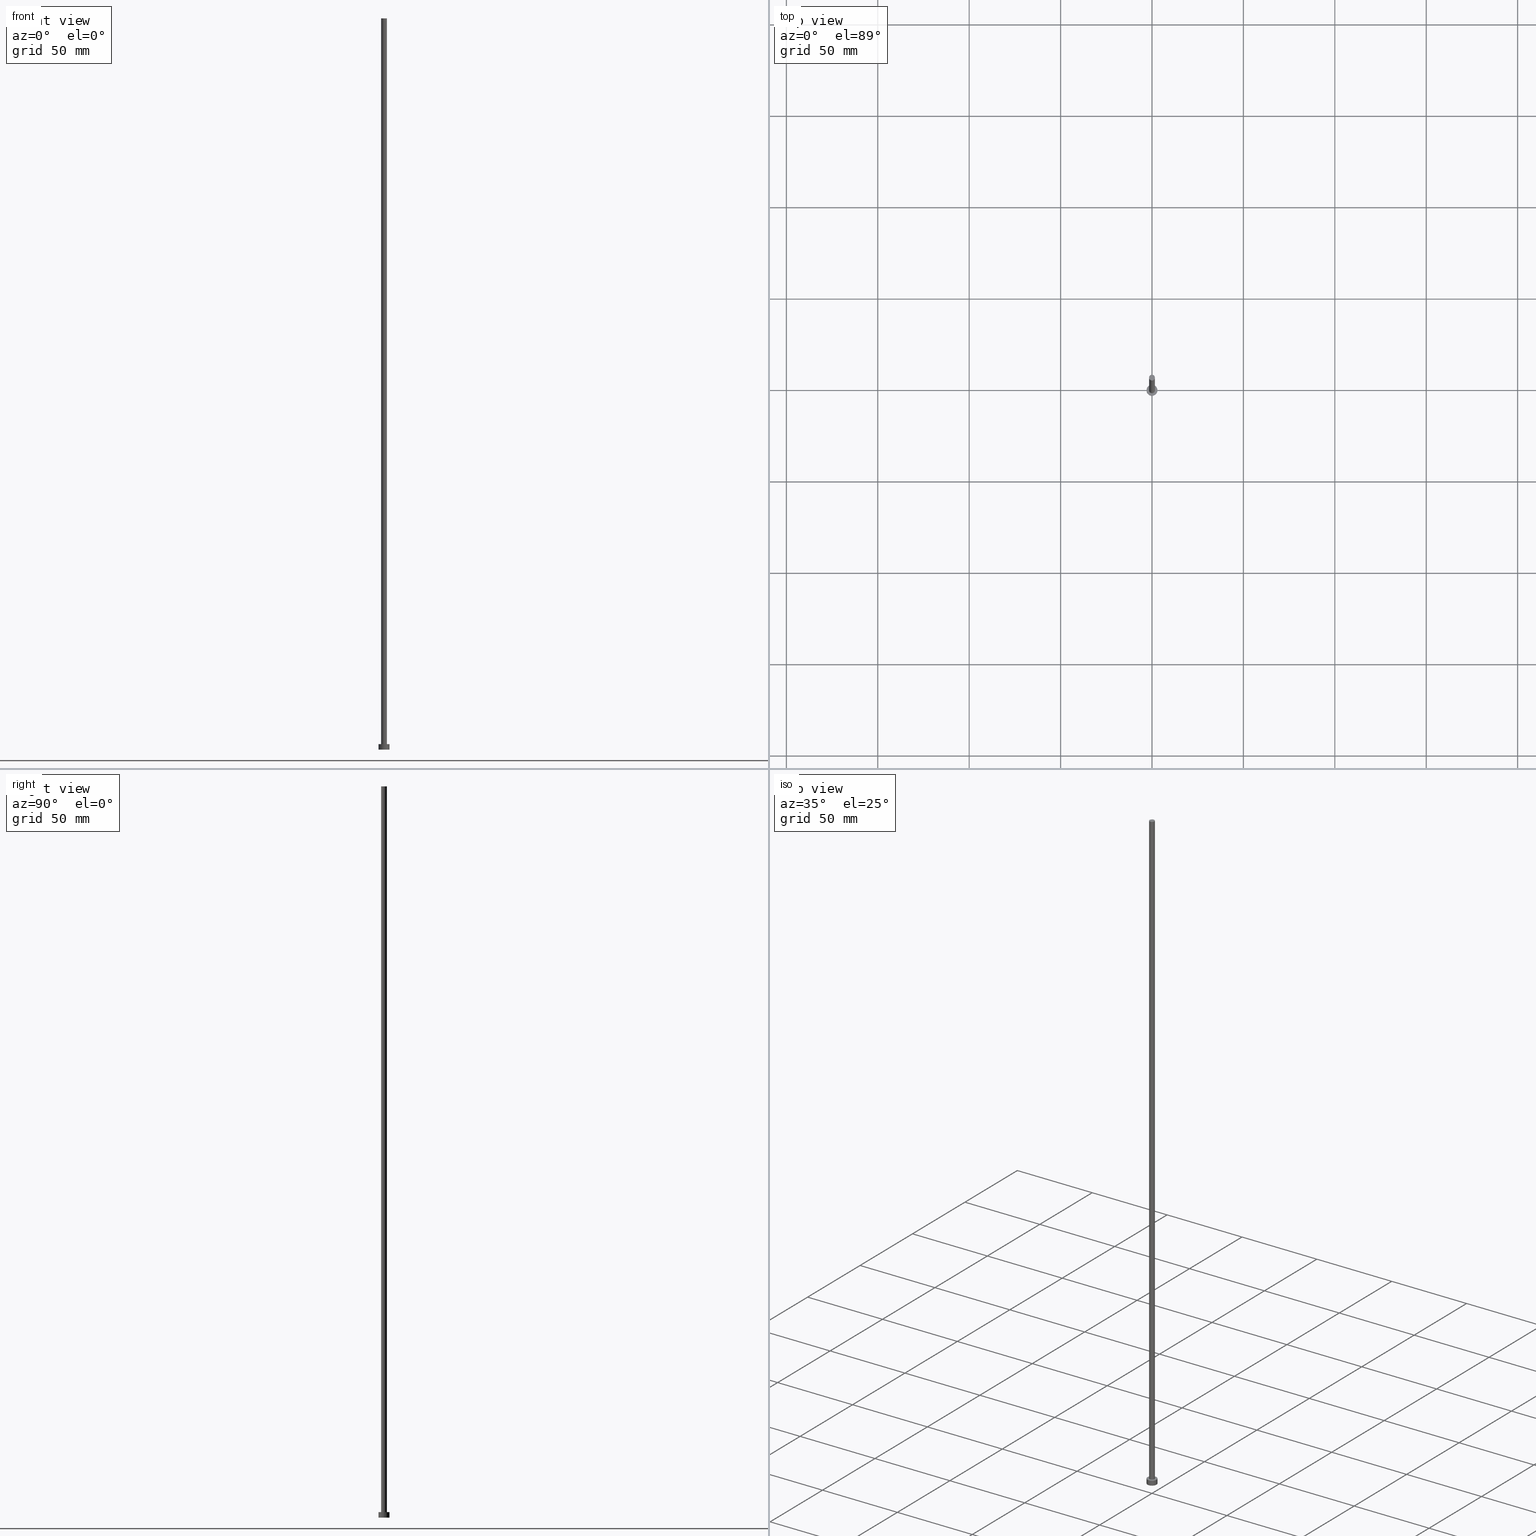
[diagram: canonical four-view strip — front | top / right | iso, engineering-drawing reading convention]
A machine part, canonical four-view strip (front | top / right | iso — engineering-drawing reading convention). The complete STEP part file that produces these views, byte-faithful:
ISO-10303-21;
HEADER;
FILE_DESCRIPTION (( 'STEP AP203' ),
    '1' );
FILE_NAME ('bd90.STEP',
    '2023-02-13T15:35:23',
    ( '' ),
    ( '' ),
    'SwSTEP 2.0',
    'SolidWorks 2019',
    '' );
FILE_SCHEMA (( 'CONFIG_CONTROL_DESIGN' ));
ENDSEC;

DATA;
#1 =( NAMED_UNIT ( * ) SI_UNIT ( $, .STERADIAN. ) SOLID_ANGLE_UNIT ( ) );
#2 = CC_DESIGN_APPROVAL ( #15, ( #203 ) ) ;
#3 = VERTEX_POINT ( 'NONE', #246 ) ;
#4 = ORIENTED_EDGE ( 'NONE', *, *, #155, .F. ) ;
#5 = PRODUCT_DEFINITION_SHAPE ( 'NONE', 'NONE',  #177 ) ;
#6 = ORIENTED_EDGE ( 'NONE', *, *, #200, .F. ) ;
#7 = APPLICATION_PROTOCOL_DEFINITION ( 'international standard', 'config_control_design', 1994, #123 ) ;
#8 = APPROVAL_PERSON_ORGANIZATION ( #23, #252, #126 ) ;
#9 = ORIENTED_EDGE ( 'NONE', *, *, #112, .T. ) ;
#10 = PLANE ( 'NONE',  #59 ) ;
#11 = ORIENTED_EDGE ( 'NONE', *, *, #172, .F. ) ;
#12 = CARTESIAN_POINT ( 'NONE',  ( -1.600000000000000089, 0.000000000000000000, 400.0000000000000000 ) ) ;
#13 = CARTESIAN_POINT ( 'NONE',  ( -3.000000000000000444, 0.000000000000000000, 0.000000000000000000 ) ) ;
#14 = COORDINATED_UNIVERSAL_TIME_OFFSET ( 1, 0, .AHEAD. ) ;
#15 = APPROVAL ( #94, 'NEUR�EN�' ) ;
#16 = CARTESIAN_POINT ( 'NONE',  ( 0.000000000000000000, 0.000000000000000000, 3.000000000000000000 ) ) ;
#17 = FACE_OUTER_BOUND ( 'NONE', #250, .T. ) ;
#18 = SECURITY_CLASSIFICATION ( '', '', #128 ) ;
#19 = DIRECTION ( 'NONE',  ( 0.000000000000000000, 0.000000000000000000, 1.000000000000000000 ) ) ;
#20 = PLANE ( 'NONE',  #142 ) ;
#21 = FACE_OUTER_BOUND ( 'NONE', #57, .T. ) ;
#22 = DATE_AND_TIME ( #79, #150 ) ;
#23 = PERSON_AND_ORGANIZATION ( #253, #231 ) ;
#24 = VERTEX_POINT ( 'NONE', #51 ) ;
#25 = AXIS2_PLACEMENT_3D ( 'NONE', #196, #194, #234 ) ;
#26 = PERSON_AND_ORGANIZATION ( #253, #231 ) ;
#27 = PERSON_AND_ORGANIZATION ( #253, #231 ) ;
#28 = CARTESIAN_POINT ( 'NONE',  ( 0.000000000000000000, 0.000000000000000000, 400.0000000000000000 ) ) ;
#29 = AXIS2_PLACEMENT_3D ( 'NONE', #159, #138, #197 ) ;
#30 = DIRECTION ( 'NONE',  ( -0.000000000000000000, -0.000000000000000000, -1.000000000000000000 ) ) ;
#31 = APPROVAL_PERSON_ORGANIZATION ( #26, #135, #222 ) ;
#32 = CARTESIAN_POINT ( 'NONE',  ( -3.000000000000000444, 0.000000000000000000, 3.000000000000000000 ) ) ;
#33 = EDGE_CURVE ( 'NONE', #74, #204, #134, .T. ) ;
#34 = DIRECTION ( 'NONE',  ( 1.000000000000000000, 0.000000000000000000, 0.000000000000000000 ) ) ;
#35 = DIRECTION ( 'NONE',  ( -0.000000000000000000, -0.000000000000000000, -1.000000000000000000 ) ) ;
#36 = CIRCLE ( 'NONE', #25, 1.600000000000000089 ) ;
#37 = CC_DESIGN_SECURITY_CLASSIFICATION ( #18, ( #203 ) ) ;
#38 = CARTESIAN_POINT ( 'NONE',  ( 0.000000000000000000, 0.000000000000000000, 3.000000000000000000 ) ) ;
#39 = CARTESIAN_POINT ( 'NONE',  ( 0.000000000000000000, 0.000000000000000000, 0.000000000000000000 ) ) ;
#40 =( LENGTH_UNIT ( ) NAMED_UNIT ( * ) SI_UNIT ( .MILLI., .METRE. ) );
#41 = VECTOR ( 'NONE', #215, 1000.000000000000000 ) ;
#42 = CC_DESIGN_PERSON_AND_ORGANIZATION_ASSIGNMENT ( #111, #91, ( #18 ) ) ;
#43 = APPLICATION_PROTOCOL_DEFINITION ( 'international standard', 'config_control_design', 1994, #84 ) ;
#44 = PRODUCT_RELATED_PRODUCT_CATEGORY ( 'detail', '', ( #245 ) ) ;
#45 = ORIENTED_EDGE ( 'NONE', *, *, #172, .T. ) ;
#46 = CIRCLE ( 'NONE', #80, 3.000000000000000444 ) ;
#47 = DATE_TIME_ROLE ( 'creation_date' ) ;
#48 = AXIS2_PLACEMENT_3D ( 'NONE', #67, #151, #50 ) ;
#49 = APPROVAL_DATE_TIME ( #125, #15 ) ;
#50 = DIRECTION ( 'NONE',  ( 1.000000000000000000, 0.000000000000000000, 0.000000000000000000 ) ) ;
#51 = CARTESIAN_POINT ( 'NONE',  ( 3.000000000000000444, 3.673940397442060361E-16, 0.000000000000000000 ) ) ;
#52 = DIRECTION ( 'NONE',  ( 1.000000000000000000, 0.000000000000000000, 0.000000000000000000 ) ) ;
#53 = DIRECTION ( 'NONE',  ( 0.000000000000000000, 0.000000000000000000, 1.000000000000000000 ) ) ;
#54 = DIRECTION ( 'NONE',  ( 0.000000000000000000, 0.000000000000000000, 1.000000000000000000 ) ) ;
#55 = ORIENTED_EDGE ( 'NONE', *, *, #33, .F. ) ;
#56 = DIRECTION ( 'NONE',  ( -1.000000000000000000, 0.000000000000000000, 0.000000000000000000 ) ) ;
#57 = EDGE_LOOP ( 'NONE', ( #119, #9 ) ) ;
#58 = ADVANCED_BREP_SHAPE_REPRESENTATION ( 'bd90', ( #133, #48 ), #122 ) ;
#59 = AXIS2_PLACEMENT_3D ( 'NONE', #157, #53, #220 ) ;
#60 = CARTESIAN_POINT ( 'NONE',  ( 0.000000000000000000, 0.000000000000000000, 400.0000000000000000 ) ) ;
#61 = EDGE_CURVE ( 'NONE', #182, #74, #168, .T. ) ;
#62 = CIRCLE ( 'NONE', #96, 1.600000000000000089 ) ;
#63 = CC_DESIGN_PERSON_AND_ORGANIZATION_ASSIGNMENT ( #183, #205, ( #245 ) ) ;
#64 = CC_DESIGN_DATE_AND_TIME_ASSIGNMENT ( #181, #121, ( #18 ) ) ;
#65 = VERTEX_POINT ( 'NONE', #108 ) ;
#66 = AXIS2_PLACEMENT_3D ( 'NONE', #137, #100, #175 ) ;
#67 = CARTESIAN_POINT ( 'NONE',  ( 0.000000000000000000, 0.000000000000000000, 0.000000000000000000 ) ) ;
#68 = DIRECTION ( 'NONE',  ( 1.000000000000000000, 0.000000000000000000, 0.000000000000000000 ) ) ;
#69 = CLOSED_SHELL ( 'NONE', ( #104, #72, #120, #242, #239, #158, #186 ) ) ;
#70 = DIRECTION ( 'NONE',  ( -1.000000000000000000, 0.000000000000000000, 0.000000000000000000 ) ) ;
#71 = CC_DESIGN_APPROVAL ( #135, ( #18 ) ) ;
#72 = ADVANCED_FACE ( 'NONE', ( #217 ), #218, .T. ) ;
#73 = FACE_OUTER_BOUND ( 'NONE', #139, .T. ) ;
#74 = VERTEX_POINT ( 'NONE', #214 ) ;
#75 = CARTESIAN_POINT ( 'NONE',  ( 0.000000000000000000, 0.000000000000000000, 3.000000000000000000 ) ) ;
#76 = CARTESIAN_POINT ( 'NONE',  ( -3.000000000000000444, 0.000000000000000000, 3.000000000000000000 ) ) ;
#77 = LOCAL_TIME ( 16, 35, 23.00000000000000000, #244 ) ;
#78 = ORIENTED_EDGE ( 'NONE', *, *, #148, .T. ) ;
#79 = CALENDAR_DATE ( 2023, 13, 2 ) ;
#80 = AXIS2_PLACEMENT_3D ( 'NONE', #39, #154, #136 ) ;
#81 = VECTOR ( 'NONE', #35, 1000.000000000000000 ) ;
#82 = ORIENTED_EDGE ( 'NONE', *, *, #112, .F. ) ;
#83 = AXIS2_PLACEMENT_3D ( 'NONE', #90, #54, #34 ) ;
#84 = APPLICATION_CONTEXT ( 'configuration controlled 3d designs of mechanical parts and assemblies' ) ;
#85 = CC_DESIGN_DATE_AND_TIME_ASSIGNMENT ( #240, #47, ( #177 ) ) ;
#86 = CALENDAR_DATE ( 2023, 13, 2 ) ;
#87 = APPROVAL_STATUS ( 'not_yet_approved' ) ;
#88 = VERTEX_POINT ( 'NONE', #32 ) ;
#89 = DIRECTION ( 'NONE',  ( -1.000000000000000000, 0.000000000000000000, 0.000000000000000000 ) ) ;
#90 = CARTESIAN_POINT ( 'NONE',  ( 0.000000000000000000, 0.000000000000000000, 0.000000000000000000 ) ) ;
#91 = PERSON_AND_ORGANIZATION_ROLE ( 'classification_officer' ) ;
#92 = EDGE_CURVE ( 'NONE', #204, #3, #149, .T. ) ;
#93 = CARTESIAN_POINT ( 'NONE',  ( 0.000000000000000000, 0.000000000000000000, 0.000000000000000000 ) ) ;
#94 = APPROVAL_STATUS ( 'not_yet_approved' ) ;
#95 = CARTESIAN_POINT ( 'NONE',  ( 1.600000000000000089, 1.959434878635765230E-16, 400.0000000000000000 ) ) ;
#96 = AXIS2_PLACEMENT_3D ( 'NONE', #110, #229, #68 ) ;
#97 = CALENDAR_DATE ( 2023, 13, 2 ) ;
#98 = ORIENTED_EDGE ( 'NONE', *, *, #198, .T. ) ;
#99 = DIRECTION ( 'NONE',  ( 0.000000000000000000, 0.000000000000000000, 1.000000000000000000 ) ) ;
#100 = DIRECTION ( 'NONE',  ( 0.000000000000000000, 0.000000000000000000, 1.000000000000000000 ) ) ;
#101 = APPROVAL_DATE_TIME ( #22, #135 ) ;
#102 = ORIENTED_EDGE ( 'NONE', *, *, #221, .T. ) ;
#103 = COORDINATED_UNIVERSAL_TIME_OFFSET ( 1, 0, .AHEAD. ) ;
#104 = ADVANCED_FACE ( 'NONE', ( #17 ), #235, .T. ) ;
#105 = ORIENTED_EDGE ( 'NONE', *, *, #155, .T. ) ;
#106 = DESIGN_CONTEXT ( 'detailed design', #123, 'design' ) ;
#107 = DATE_AND_TIME ( #86, #77 ) ;
#108 = CARTESIAN_POINT ( 'NONE',  ( 3.000000000000000444, 3.673940397442060361E-16, 3.000000000000000000 ) ) ;
#109 = APPROVAL_PERSON_ORGANIZATION ( #241, #15, #248 ) ;
#110 = CARTESIAN_POINT ( 'NONE',  ( 0.000000000000000000, 0.000000000000000000, 3.000000000000000000 ) ) ;
#111 = PERSON_AND_ORGANIZATION ( #253, #231 ) ;
#112 = EDGE_CURVE ( 'NONE', #65, #88, #243, .T. ) ;
#113 = FACE_OUTER_BOUND ( 'NONE', #208, .T. ) ;
#114 = ORIENTED_EDGE ( 'NONE', *, *, #140, .F. ) ;
#115 = DIRECTION ( 'NONE',  ( 1.000000000000000000, 0.000000000000000000, -0.000000000000000000 ) ) ;
#116 = LOCAL_TIME ( 16, 35, 23.00000000000000000, #14 ) ;
#117 = EDGE_LOOP ( 'NONE', ( #55, #152, #102, #45 ) ) ;
#118 = ORIENTED_EDGE ( 'NONE', *, *, #140, .T. ) ;
#119 = ORIENTED_EDGE ( 'NONE', *, *, #191, .T. ) ;
#120 = ADVANCED_FACE ( 'NONE', ( #174 ), #251, .T. ) ;
#121 = DATE_TIME_ROLE ( 'classification_date' ) ;
#122 =( GEOMETRIC_REPRESENTATION_CONTEXT ( 3 ) GLOBAL_UNCERTAINTY_ASSIGNED_CONTEXT ( ( #163 ) ) GLOBAL_UNIT_ASSIGNED_CONTEXT ( ( #40, #143, #1 ) ) REPRESENTATION_CONTEXT ( 'NONE', 'WORKASPACE' ) );
#123 = APPLICATION_CONTEXT ( 'configuration controlled 3d designs of mechanical parts and assemblies' ) ;
#124 = MECHANICAL_CONTEXT ( 'NONE', #84, 'mechanical' ) ;
#125 = DATE_AND_TIME ( #97, #116 ) ;
#126 = APPROVAL_ROLE ( '' ) ;
#127 = CARTESIAN_POINT ( 'NONE',  ( 3.000000000000000444, 3.673940397442060361E-16, 3.000000000000000000 ) ) ;
#128 = SECURITY_CLASSIFICATION_LEVEL ( 'unclassified' ) ;
#129 = VECTOR ( 'NONE', #213, 1000.000000000000000 ) ;
#130 = AXIS2_PLACEMENT_3D ( 'NONE', #16, #99, #254 ) ;
#131 = LINE ( 'NONE', #127, #223 ) ;
#132 = CC_DESIGN_PERSON_AND_ORGANIZATION_ASSIGNMENT ( #164, #167, ( #177 ) ) ;
#133 = MANIFOLD_SOLID_BREP ( 'P�idat vysunut�m3', #69 ) ;
#134 = LINE ( 'NONE', #95, #129 ) ;
#135 = APPROVAL ( #225, 'NEUR�EN�' ) ;
#136 = DIRECTION ( 'NONE',  ( 1.000000000000000000, 0.000000000000000000, 0.000000000000000000 ) ) ;
#137 = CARTESIAN_POINT ( 'NONE',  ( 0.000000000000000000, 0.000000000000000000, 3.000000000000000000 ) ) ;
#138 = DIRECTION ( 'NONE',  ( 0.000000000000000000, 0.000000000000000000, 1.000000000000000000 ) ) ;
#139 = EDGE_LOOP ( 'NONE', ( #233, #118 ) ) ;
#140 = EDGE_CURVE ( 'NONE', #74, #182, #36, .T. ) ;
#141 = VERTEX_POINT ( 'NONE', #13 ) ;
#142 = AXIS2_PLACEMENT_3D ( 'NONE', #238, #19, #178 ) ;
#143 =( NAMED_UNIT ( * ) PLANE_ANGLE_UNIT ( ) SI_UNIT ( $, .RADIAN. ) );
#144 = LOCAL_TIME ( 16, 35, 23.00000000000000000, #103 ) ;
#145 = ORIENTED_EDGE ( 'NONE', *, *, #92, .T. ) ;
#146 = CALENDAR_DATE ( 2023, 13, 2 ) ;
#147 = PERSON_AND_ORGANIZATION_ROLE ( 'design_supplier' ) ;
#148 = EDGE_CURVE ( 'NONE', #141, #24, #46, .T. ) ;
#149 = CIRCLE ( 'NONE', #29, 1.600000000000000089 ) ;
#150 = LOCAL_TIME ( 16, 35, 23.00000000000000000, #162 ) ;
#151 = DIRECTION ( 'NONE',  ( 0.000000000000000000, 0.000000000000000000, 1.000000000000000000 ) ) ;
#152 = ORIENTED_EDGE ( 'NONE', *, *, #61, .F. ) ;
#153 = ORIENTED_EDGE ( 'NONE', *, *, #200, .T. ) ;
#154 = DIRECTION ( 'NONE',  ( 0.000000000000000000, 0.000000000000000000, 1.000000000000000000 ) ) ;
#155 = EDGE_CURVE ( 'NONE', #65, #24, #131, .T. ) ;
#156 = ORIENTED_EDGE ( 'NONE', *, *, #92, .F. ) ;
#157 = CARTESIAN_POINT ( 'NONE',  ( 0.000000000000000000, 0.000000000000000000, 400.0000000000000000 ) ) ;
#158 = ADVANCED_FACE ( 'NONE', ( #236 ), #171, .T. ) ;
#159 = CARTESIAN_POINT ( 'NONE',  ( 0.000000000000000000, 0.000000000000000000, 3.000000000000000000 ) ) ;
#160 = DIRECTION ( 'NONE',  ( -0.000000000000000000, -0.000000000000000000, -1.000000000000000000 ) ) ;
#161 = DIRECTION ( 'NONE',  ( -0.000000000000000000, -0.000000000000000000, -1.000000000000000000 ) ) ;
#162 = COORDINATED_UNIVERSAL_TIME_OFFSET ( 1, 0, .AHEAD. ) ;
#163 = UNCERTAINTY_MEASURE_WITH_UNIT (LENGTH_MEASURE( 1.000000000000000082E-05 ), #40, 'distance_accuracy_value', 'NONE');
#164 = PERSON_AND_ORGANIZATION ( #253, #231 ) ;
#165 = PERSON_AND_ORGANIZATION_ROLE ( 'creator' ) ;
#166 = CARTESIAN_POINT ( 'NONE',  ( 1.600000000000000089, 1.959434878635765230E-16, 3.000000000000000000 ) ) ;
#167 = PERSON_AND_ORGANIZATION_ROLE ( 'creator' ) ;
#168 = CIRCLE ( 'NONE', #219, 1.600000000000000089 ) ;
#169 = LINE ( 'NONE', #76, #41 ) ;
#170 = DIRECTION ( 'NONE',  ( 0.000000000000000000, 0.000000000000000000, 1.000000000000000000 ) ) ;
#171 = CYLINDRICAL_SURFACE ( 'NONE', #211, 1.600000000000000089 ) ;
#172 = EDGE_CURVE ( 'NONE', #3, #204, #62, .T. ) ;
#173 = ORIENTED_EDGE ( 'NONE', *, *, #191, .F. ) ;
#174 = FACE_OUTER_BOUND ( 'NONE', #227, .T. ) ;
#175 = DIRECTION ( 'NONE',  ( 1.000000000000000000, 0.000000000000000000, 0.000000000000000000 ) ) ;
#176 = CIRCLE ( 'NONE', #83, 3.000000000000000444 ) ;
#177 = PRODUCT_DEFINITION ( 'NEZN�M�', '', #203, #106 ) ;
#178 = DIRECTION ( 'NONE',  ( 1.000000000000000000, 0.000000000000000000, -0.000000000000000000 ) ) ;
#179 = AXIS2_PLACEMENT_3D ( 'NONE', #60, #161, #237 ) ;
#180 = CC_DESIGN_PERSON_AND_ORGANIZATION_ASSIGNMENT ( #207, #147, ( #203 ) ) ;
#181 = DATE_AND_TIME ( #146, #144 ) ;
#182 = VERTEX_POINT ( 'NONE', #187 ) ;
#183 = PERSON_AND_ORGANIZATION ( #253, #231 ) ;
#184 = CALENDAR_DATE ( 2023, 13, 2 ) ;
#185 = DIRECTION ( 'NONE',  ( -0.000000000000000000, -0.000000000000000000, -1.000000000000000000 ) ) ;
#186 = ADVANCED_FACE ( 'NONE', ( #73 ), #10, .T. ) ;
#187 = CARTESIAN_POINT ( 'NONE',  ( -1.600000000000000089, 0.000000000000000000, 400.0000000000000000 ) ) ;
#188 = APPROVAL_DATE_TIME ( #107, #252 ) ;
#189 = PLANE ( 'NONE',  #210 ) ;
#190 = ORIENTED_EDGE ( 'NONE', *, *, #148, .F. ) ;
#191 = EDGE_CURVE ( 'NONE', #88, #65, #255, .T. ) ;
#192 = CARTESIAN_POINT ( 'NONE',  ( 0.000000000000000000, 0.000000000000000000, 400.0000000000000000 ) ) ;
#193 = CC_DESIGN_APPROVAL ( #252, ( #177 ) ) ;
#194 = DIRECTION ( 'NONE',  ( 0.000000000000000000, 0.000000000000000000, 1.000000000000000000 ) ) ;
#195 = EDGE_LOOP ( 'NONE', ( #11, #156 ) ) ;
#196 = CARTESIAN_POINT ( 'NONE',  ( 0.000000000000000000, 0.000000000000000000, 400.0000000000000000 ) ) ;
#197 = DIRECTION ( 'NONE',  ( 1.000000000000000000, 0.000000000000000000, 0.000000000000000000 ) ) ;
#198 = EDGE_CURVE ( 'NONE', #88, #141, #169, .T. ) ;
#199 = FACE_BOUND ( 'NONE', #195, .T. ) ;
#200 = EDGE_CURVE ( 'NONE', #24, #141, #176, .T. ) ;
#201 = AXIS2_PLACEMENT_3D ( 'NONE', #38, #185, #89 ) ;
#202 = SHAPE_DEFINITION_REPRESENTATION ( #5, #58 ) ;
#203 = PRODUCT_DEFINITION_FORMATION_WITH_SPECIFIED_SOURCE ( 'LIBOVOLN�', '', #245, .NOT_KNOWN. ) ;
#204 = VERTEX_POINT ( 'NONE', #166 ) ;
#205 = PERSON_AND_ORGANIZATION_ROLE ( 'design_owner' ) ;
#206 = EDGE_LOOP ( 'NONE', ( #82, #105, #153, #212 ) ) ;
#207 = PERSON_AND_ORGANIZATION ( #253, #231 ) ;
#208 = EDGE_LOOP ( 'NONE', ( #190, #6 ) ) ;
#209 = AXIS2_PLACEMENT_3D ( 'NONE', #75, #249, #56 ) ;
#210 = AXIS2_PLACEMENT_3D ( 'NONE', #93, #247, #115 ) ;
#211 = AXIS2_PLACEMENT_3D ( 'NONE', #192, #30, #70 ) ;
#212 = ORIENTED_EDGE ( 'NONE', *, *, #198, .F. ) ;
#213 = DIRECTION ( 'NONE',  ( -0.000000000000000000, -0.000000000000000000, -1.000000000000000000 ) ) ;
#214 = CARTESIAN_POINT ( 'NONE',  ( 1.600000000000000089, 1.959434878635765230E-16, 400.0000000000000000 ) ) ;
#215 = DIRECTION ( 'NONE',  ( -0.000000000000000000, -0.000000000000000000, -1.000000000000000000 ) ) ;
#216 = LINE ( 'NONE', #12, #81 ) ;
#217 = FACE_OUTER_BOUND ( 'NONE', #206, .T. ) ;
#218 = CYLINDRICAL_SURFACE ( 'NONE', #201, 3.000000000000000444 ) ;
#219 = AXIS2_PLACEMENT_3D ( 'NONE', #28, #170, #52 ) ;
#220 = DIRECTION ( 'NONE',  ( 1.000000000000000000, 0.000000000000000000, -0.000000000000000000 ) ) ;
#221 = EDGE_CURVE ( 'NONE', #182, #3, #216, .T. ) ;
#222 = APPROVAL_ROLE ( '' ) ;
#223 = VECTOR ( 'NONE', #160, 1000.000000000000000 ) ;
#224 = LOCAL_TIME ( 16, 35, 23.00000000000000000, #230 ) ;
#225 = APPROVAL_STATUS ( 'not_yet_approved' ) ;
#226 = CC_DESIGN_PERSON_AND_ORGANIZATION_ASSIGNMENT ( #27, #165, ( #203 ) ) ;
#227 = EDGE_LOOP ( 'NONE', ( #4, #173, #98, #78 ) ) ;
#228 = ORIENTED_EDGE ( 'NONE', *, *, #221, .F. ) ;
#229 = DIRECTION ( 'NONE',  ( 0.000000000000000000, 0.000000000000000000, 1.000000000000000000 ) ) ;
#230 = COORDINATED_UNIVERSAL_TIME_OFFSET ( 1, 0, .AHEAD. ) ;
#231 = ORGANIZATION ( 'NEUR�EN�', 'NEUR�EN�', '' ) ;
#232 = ORIENTED_EDGE ( 'NONE', *, *, #33, .T. ) ;
#233 = ORIENTED_EDGE ( 'NONE', *, *, #61, .T. ) ;
#234 = DIRECTION ( 'NONE',  ( 1.000000000000000000, 0.000000000000000000, 0.000000000000000000 ) ) ;
#235 = CYLINDRICAL_SURFACE ( 'NONE', #179, 1.600000000000000089 ) ;
#236 = FACE_OUTER_BOUND ( 'NONE', #117, .T. ) ;
#237 = DIRECTION ( 'NONE',  ( -1.000000000000000000, 0.000000000000000000, 0.000000000000000000 ) ) ;
#238 = CARTESIAN_POINT ( 'NONE',  ( 0.000000000000000000, 0.000000000000000000, 3.000000000000000000 ) ) ;
#239 = ADVANCED_FACE ( 'NONE', ( #113 ), #189, .F. ) ;
#240 = DATE_AND_TIME ( #184, #224 ) ;
#241 = PERSON_AND_ORGANIZATION ( #253, #231 ) ;
#242 = ADVANCED_FACE ( 'NONE', ( #199, #21 ), #20, .T. ) ;
#243 = CIRCLE ( 'NONE', #66, 3.000000000000000444 ) ;
#244 = COORDINATED_UNIVERSAL_TIME_OFFSET ( 1, 0, .AHEAD. ) ;
#245 = PRODUCT ( 'bd90', 'bd90', '', ( #124 ) ) ;
#246 = CARTESIAN_POINT ( 'NONE',  ( -1.600000000000000089, 0.000000000000000000, 3.000000000000000000 ) ) ;
#247 = DIRECTION ( 'NONE',  ( 0.000000000000000000, 0.000000000000000000, 1.000000000000000000 ) ) ;
#248 = APPROVAL_ROLE ( '' ) ;
#249 = DIRECTION ( 'NONE',  ( -0.000000000000000000, -0.000000000000000000, -1.000000000000000000 ) ) ;
#250 = EDGE_LOOP ( 'NONE', ( #114, #232, #145, #228 ) ) ;
#251 = CYLINDRICAL_SURFACE ( 'NONE', #209, 3.000000000000000444 ) ;
#252 = APPROVAL ( #87, 'NEUR�EN�' ) ;
#253 = PERSON ( 'NEUR�EN�', 'NEUR�EN�', 'NEUR�EN�', ('NEUR�EN�'), ('NEUR�EN�'), ('NEUR�EN�') ) ;
#254 = DIRECTION ( 'NONE',  ( 1.000000000000000000, 0.000000000000000000, 0.000000000000000000 ) ) ;
#255 = CIRCLE ( 'NONE', #130, 3.000000000000000444 ) ;
ENDSEC;
END-ISO-10303-21;
